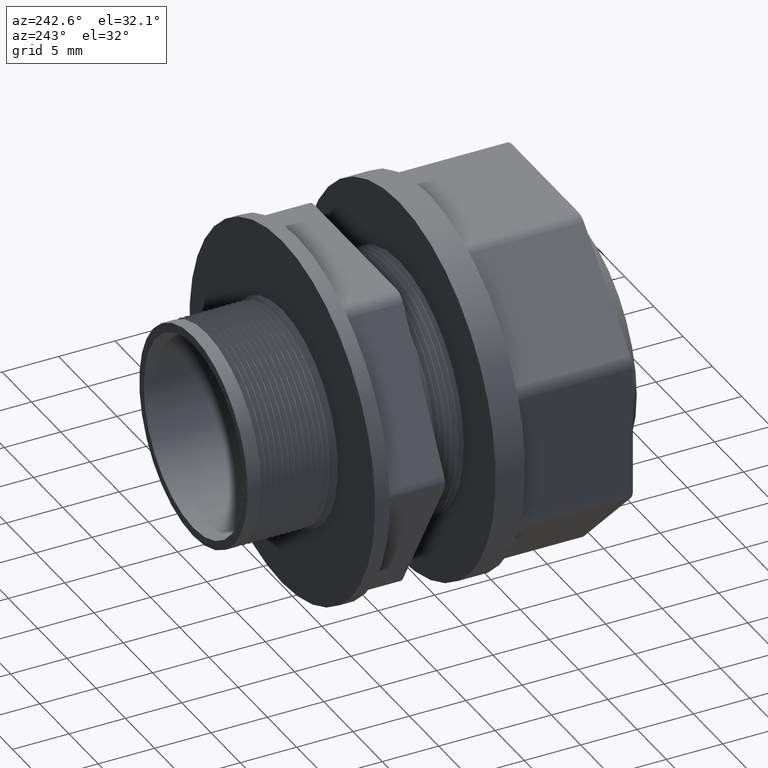
[diagram: clean part render]
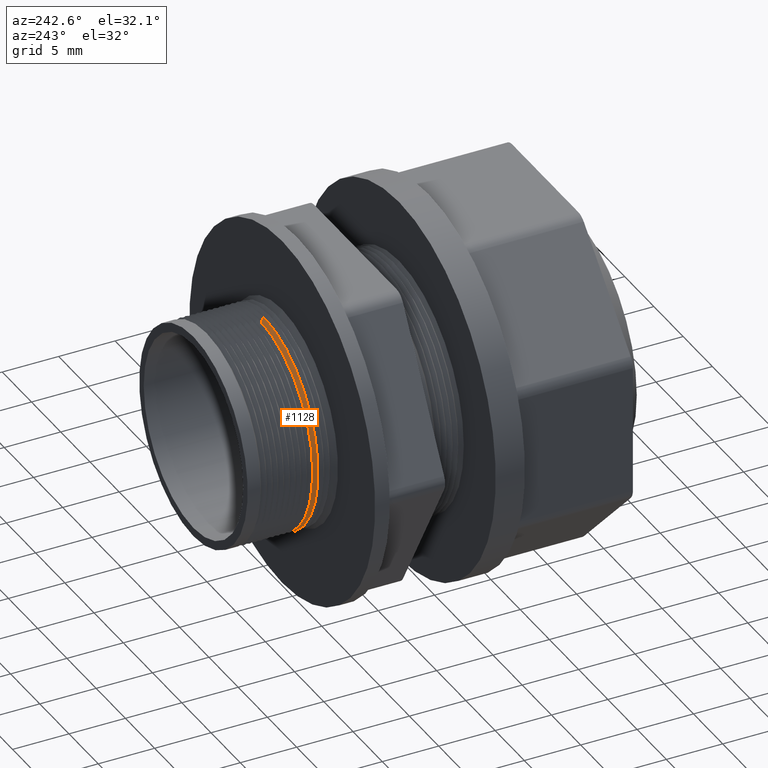
[diagram: same view with one face highlighted and labeled with its STEP entity id]
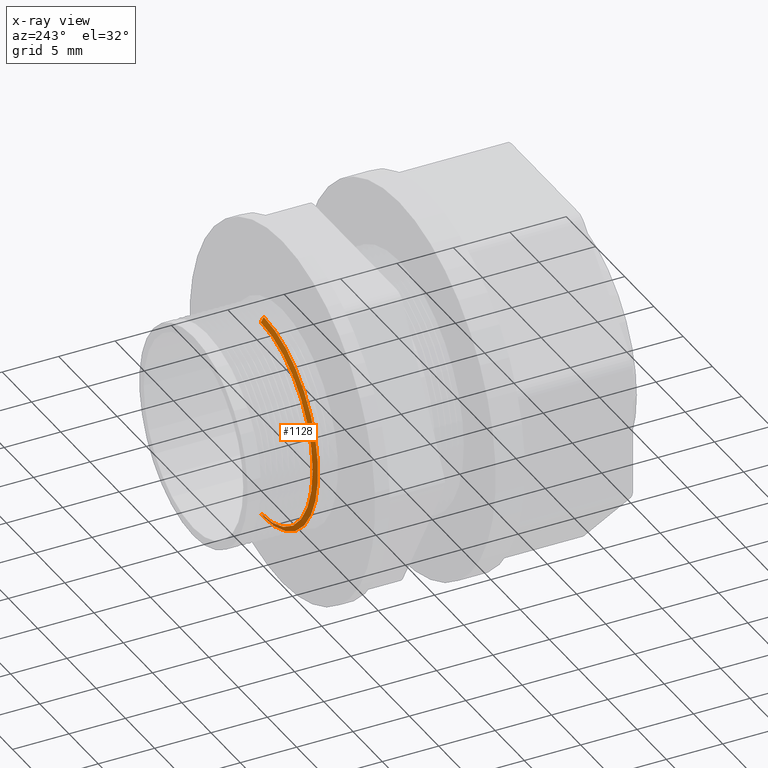
[diagram: x-ray of the same camera — body ghosted, the highlighted face saturated]
A machine part, auxiliary view. The second image highlights one B-rep face of the part: STEP entity #1128.
The next image is the same camera in x-ray: the body ghosted, the highlighted face saturated — about 2% of this face is hidden behind the body in this view.
In plain terms, the highlighted conical surface has half-angle 60.018 deg.
Its self-contained STEP definition (entity closure, byte-faithful):
#580 = VERTEX_POINT ( 'NONE', #2268 ) ;
#609 = VERTEX_POINT ( 'NONE', #2410 ) ;
#684 = EDGE_CURVE ( 'NONE', #609, #685, #2675, .T. ) ;
#685 = VERTEX_POINT ( 'NONE', #2667 ) ;
#688 = VERTEX_POINT ( 'NONE', #2534 ) ;
#690 = EDGE_CURVE ( 'NONE', #580, #688, #2528, .T. ) ;
#1046 = ORIENTED_EDGE ( 'NONE', *, *, #1139, .F. ) ;
#1086 = EDGE_CURVE ( 'NONE', #685, #688, #3150, .T. ) ;
#1092 = ORIENTED_EDGE ( 'NONE', *, *, #1086, .F. ) ;
#1095 = ORIENTED_EDGE ( 'NONE', *, *, #690, .T. ) ;
#1121 = EDGE_LOOP ( 'NONE', ( #1129, #1046, #1095, #1092 ) ) ;
#1128 = ADVANCED_FACE ( 'NONE', ( #3138 ), #3133, .T. ) ;
#1129 = ORIENTED_EDGE ( 'NONE', *, *, #684, .F. ) ;
#1139 = EDGE_CURVE ( 'NONE', #580, #609, #3288, .T. ) ;
#2268 = CARTESIAN_POINT ( 'NONE',  ( 0.0000000000000000000, 1.094991837162775200, -0.3490145267796635500 ) ) ;
#2410 = CARTESIAN_POINT ( 'NONE',  ( 4.380252740682312600E-017, 1.094991837162775200, 0.3490145267796635500 ) ) ;
#2525 = DIRECTION ( 'NONE',  ( 0.0000000000000000000, -0.4997279054258417200, -0.8661824406778867400 ) ) ;
#2526 = VECTOR ( 'NONE', #2525, 39.37007874015748900 ) ;
#2527 = CARTESIAN_POINT ( 'NONE',  ( 0.0000000000000000000, 1.080000000000000100, -0.3749999999999999400 ) ) ;
#2528 = LINE ( 'NONE', #2527, #2526 ) ;
#2534 = CARTESIAN_POINT ( 'NONE',  ( 4.486310250598193200E-017, 1.084999092359754800, -0.3663350325760649200 ) ) ;
#2667 = CARTESIAN_POINT ( 'NONE',  ( 0.0000000000000000000, 1.084999092359754800, 0.3663350325760649200 ) ) ;
#2668 = DIRECTION ( 'NONE',  ( 1.060767553453816200E-016, -0.4997279054258417200, 0.8661824406778867400 ) ) ;
#2669 = VECTOR ( 'NONE', #2668, 39.37007874015748900 ) ;
#2674 = CARTESIAN_POINT ( 'NONE',  ( 4.592425496802573600E-017, 1.080000000000000100, 0.3749999999999999400 ) ) ;
#2675 = LINE ( 'NONE', #2674, #2669 ) ;
#3128 = DIRECTION ( 'NONE',  ( 0.0000000000000000000, 0.0000000000000000000, -1.000000000000000000 ) ) ;
#3129 = DIRECTION ( 'NONE',  ( 0.0000000000000000000, -1.000000000000000000, 0.0000000000000000000 ) ) ;
#3130 = CARTESIAN_POINT ( 'NONE',  ( 0.0000000000000000000, 1.080000000000000100, 0.0000000000000000000 ) ) ;
#3131 = AXIS2_PLACEMENT_3D ( 'NONE', #3130, #3129, #3128 ) ;
#3133 = CONICAL_SURFACE ( 'NONE', #3131, 0.3749999999999999400, 1.047511710461942500 ) ;
#3138 = FACE_OUTER_BOUND ( 'NONE', #1121, .T. ) ;
#3146 = DIRECTION ( 'NONE',  ( 0.0000000000000000000, 0.0000000000000000000, -1.000000000000000000 ) ) ;
#3147 = DIRECTION ( 'NONE',  ( 0.0000000000000000000, -1.000000000000000000, 0.0000000000000000000 ) ) ;
#3148 = CARTESIAN_POINT ( 'NONE',  ( 0.0000000000000000000, 1.084999092359754800, 0.0000000000000000000 ) ) ;
#3149 = AXIS2_PLACEMENT_3D ( 'NONE', #3148, #3147, #3146 ) ;
#3150 = CIRCLE ( 'NONE', #3149, 0.3663350325760648100 ) ;
#3284 = DIRECTION ( 'NONE',  ( 0.0000000000000000000, 0.0000000000000000000, 1.000000000000000000 ) ) ;
#3285 = DIRECTION ( 'NONE',  ( -0.0000000000000000000, 1.000000000000000000, -0.0000000000000000000 ) ) ;
#3286 = CARTESIAN_POINT ( 'NONE',  ( 0.0000000000000000000, 1.094991837162775200, 0.0000000000000000000 ) ) ;
#3287 = AXIS2_PLACEMENT_3D ( 'NONE', #3286, #3285, #3284 ) ;
#3288 = CIRCLE ( 'NONE', #3287, 0.3490145267796635500 ) ;